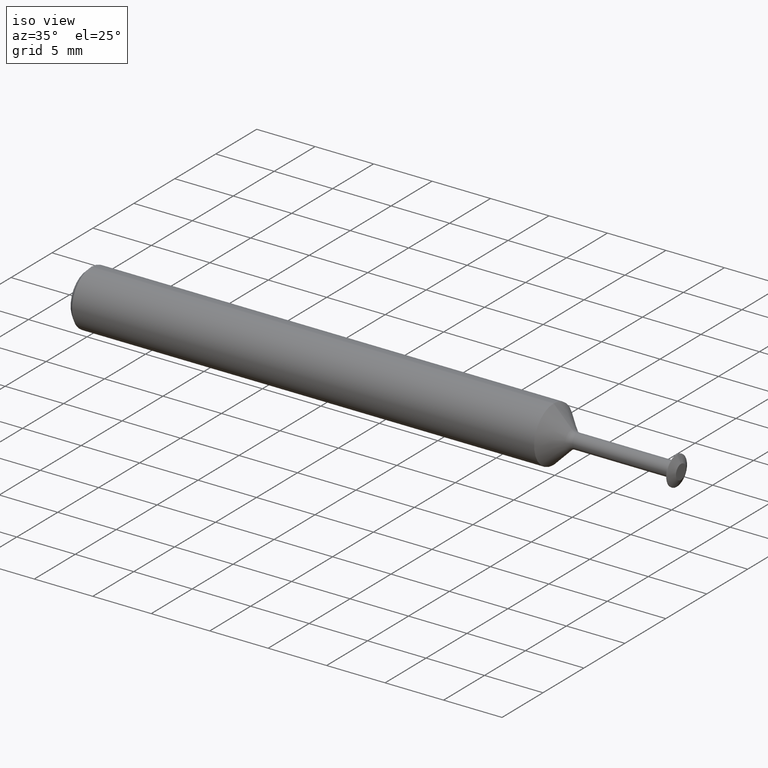
[diagram: clean part render]
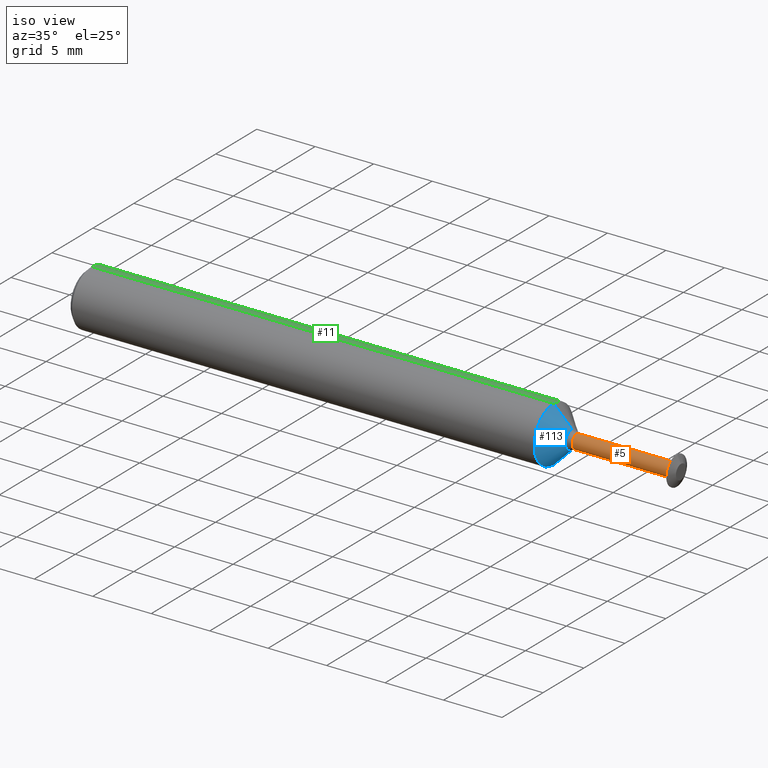
[diagram: same view with three faces highlighted in distinct colors, each labeled with its STEP entity id]
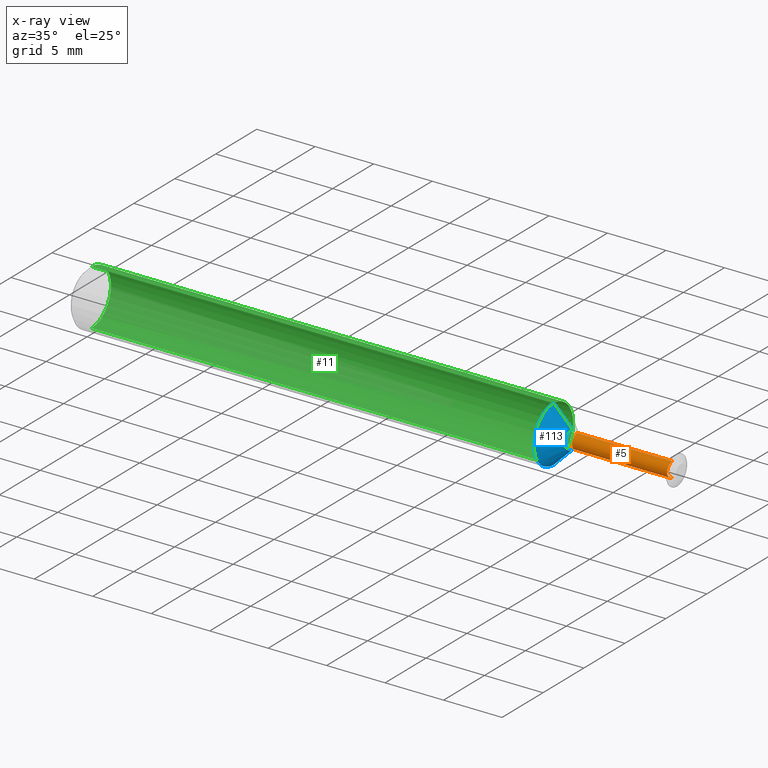
[diagram: x-ray of the same camera — body ghosted, the three highlighted faces saturated]
A machine part, iso view with three faces highlighted in distinct colors.
The next image is the same camera in x-ray (body ghosted, the three faces saturated) — at least one of them is partly hidden behind the body in this view.
Their STEP definitions:

[orange] entity #5 — the highlighted cylindrical surface (edge-blend (fillet) strip) has radius 0.6223 mm, axis along (-1, -0, -0).
#5 = ADVANCED_FACE ( 'NONE', ( #342 ), #486, .T. ) ;
#12 = CARTESIAN_POINT ( 'NONE',  ( 1.970380621325877213, 4.500576986866479174E-18, 0.02449999999999963665 ) ) ;
#15 = CIRCLE ( 'NONE', #45, 0.02449999999999960543 ) ;
#16 = EDGE_CURVE ( 'NONE', #262, #410, #491, .T. ) ;
#23 = DIRECTION ( 'NONE',  ( -1.000000000000000000, -0.0000000000000000000, -0.0000000000000000000 ) ) ;
#25 = ORIENTED_EDGE ( 'NONE', *, *, #241, .T. ) ;
#45 = AXIS2_PLACEMENT_3D ( 'NONE', #93, #416, #412 ) ;
#61 = CARTESIAN_POINT ( 'NONE',  ( 1.650545649722265917, 3.000384657910967884E-18, -0.02449999999999960543 ) ) ;
#92 = CARTESIAN_POINT ( 'NONE',  ( 1.970380621325877213, 0.0000000000000000000, 0.0000000000000000000 ) ) ;
#93 = CARTESIAN_POINT ( 'NONE',  ( 1.650545649722265917, 0.0000000000000000000, 0.0000000000000000000 ) ) ;
#103 = AXIS2_PLACEMENT_3D ( 'NONE', #375, #322, #408 ) ;
#104 = ORIENTED_EDGE ( 'NONE', *, *, #344, .F. ) ;
#115 = DIRECTION ( 'NONE',  ( -1.000000000000000000, -0.0000000000000000000, -0.0000000000000000000 ) ) ;
#132 = EDGE_CURVE ( 'NONE', #262, #298, #361, .T. ) ;
#144 = DIRECTION ( 'NONE',  ( -1.000000000000000000, -0.0000000000000000000, -0.0000000000000000000 ) ) ;
#173 = VERTEX_POINT ( 'NONE', #275 ) ;
#182 = ORIENTED_EDGE ( 'NONE', *, *, #132, .F. ) ;
#198 = CARTESIAN_POINT ( 'NONE',  ( 0.0000000000000000000, 0.0000000000000000000, 0.02449999999999961930 ) ) ;
#228 = CARTESIAN_POINT ( 'NONE',  ( 1.970380621325877213, 0.0000000000000000000, -0.02449999999999963665 ) ) ;
#241 = EDGE_CURVE ( 'NONE', #410, #173, #483, .T. ) ;
#262 = VERTEX_POINT ( 'NONE', #228 ) ;
#275 = CARTESIAN_POINT ( 'NONE',  ( 1.650545649722265917, 0.0000000000000000000, 0.02449999999999960543 ) ) ;
#280 = VECTOR ( 'NONE', #115, 39.37007874015748143 ) ;
#285 = DIRECTION ( 'NONE',  ( 0.0000000000000000000, 0.0000000000000000000, 1.000000000000000000 ) ) ;
#294 = ORIENTED_EDGE ( 'NONE', *, *, #16, .T. ) ;
#295 = AXIS2_PLACEMENT_3D ( 'NONE', #92, #144, #285 ) ;
#298 = VERTEX_POINT ( 'NONE', #61 ) ;
#322 = DIRECTION ( 'NONE',  ( -1.000000000000000000, -0.0000000000000000000, -0.0000000000000000000 ) ) ;
#342 = FACE_OUTER_BOUND ( 'NONE', #445, .T. ) ;
#344 = EDGE_CURVE ( 'NONE', #298, #173, #15, .T. ) ;
#361 = LINE ( 'NONE', #420, #419 ) ;
#375 = CARTESIAN_POINT ( 'NONE',  ( 0.0000000000000000000, 0.0000000000000000000, 0.0000000000000000000 ) ) ;
#408 = DIRECTION ( 'NONE',  ( 0.0000000000000000000, 0.0000000000000000000, 1.000000000000000000 ) ) ;
#410 = VERTEX_POINT ( 'NONE', #12 ) ;
#412 = DIRECTION ( 'NONE',  ( 0.0000000000000000000, 0.0000000000000000000, 1.000000000000000000 ) ) ;
#416 = DIRECTION ( 'NONE',  ( -1.000000000000000000, -0.0000000000000000000, -0.0000000000000000000 ) ) ;
#419 = VECTOR ( 'NONE', #23, 39.37007874015748143 ) ;
#420 = CARTESIAN_POINT ( 'NONE',  ( 0.0000000000000000000, 3.000384657910969040E-18, -0.02449999999999961930 ) ) ;
#445 = EDGE_LOOP ( 'NONE', ( #182, #294, #25, #104 ) ) ;
#483 = LINE ( 'NONE', #198, #280 ) ;
#486 = CYLINDRICAL_SURFACE ( 'NONE', #103, 0.02449999999999961930 ) ;
#491 = CIRCLE ( 'NONE', #295, 0.02449999999999963665 ) ;

[blue] entity #113 — the highlighted conical surface has half-angle 45 deg.
#2 = DIRECTION ( 'NONE',  ( -1.000000000000000000, -0.0000000000000000000, -0.0000000000000000000 ) ) ;
#22 = AXIS2_PLACEMENT_3D ( 'NONE', #172, #335, #501 ) ;
#33 = CARTESIAN_POINT ( 'NONE',  ( 1.632867980192602264, 0.0000000000000000000, 0.0000000000000000000 ) ) ;
#41 = EDGE_LOOP ( 'NONE', ( #346, #260, #268, #177 ) ) ;
#65 = EDGE_CURVE ( 'NONE', #80, #338, #220, .T. ) ;
#80 = VERTEX_POINT ( 'NONE', #124 ) ;
#81 = VECTOR ( 'NONE', #282, 39.37007874015748143 ) ;
#90 = DIRECTION ( 'NONE',  ( -0.7071067811865449082, 8.659560562354964906E-17, -0.7071067811865501263 ) ) ;
#113 = ADVANCED_FACE ( 'NONE', ( #148 ), #297, .T. ) ;
#124 = CARTESIAN_POINT ( 'NONE',  ( 1.632867980192602264, 3.897111515190616455E-18, -0.03182233047033591194 ) ) ;
#148 = FACE_OUTER_BOUND ( 'NONE', #41, .T. ) ;
#160 = EDGE_CURVE ( 'NONE', #343, #227, #273, .T. ) ;
#172 = CARTESIAN_POINT ( 'NONE',  ( 1.632867980192602264, 0.0000000000000000000, 0.0000000000000000000 ) ) ;
#177 = ORIENTED_EDGE ( 'NONE', *, *, #254, .F. ) ;
#192 = VECTOR ( 'NONE', #90, 39.37007874015748143 ) ;
#220 = LINE ( 'NONE', #488, #192 ) ;
#227 = VERTEX_POINT ( 'NONE', #311 ) ;
#247 = EDGE_CURVE ( 'NONE', #80, #343, #389, .T. ) ;
#249 = DIRECTION ( 'NONE',  ( 0.0000000000000000000, 0.0000000000000000000, 1.000000000000000000 ) ) ;
#254 = EDGE_CURVE ( 'NONE', #338, #227, #291, .T. ) ;
#260 = ORIENTED_EDGE ( 'NONE', *, *, #247, .T. ) ;
#268 = ORIENTED_EDGE ( 'NONE', *, *, #160, .T. ) ;
#273 = LINE ( 'NONE', #406, #81 ) ;
#276 = DIRECTION ( 'NONE',  ( -1.000000000000000000, -0.0000000000000000000, -0.0000000000000000000 ) ) ;
#282 = DIRECTION ( 'NONE',  ( -0.7071067811865449082, 0.0000000000000000000, 0.7071067811865501263 ) ) ;
#291 = CIRCLE ( 'NONE', #368, 0.09360000000000001652 ) ;
#297 = CONICAL_SURFACE ( 'NONE', #22, 0.03182233047033589113, 0.7853981633974520538 ) ;
#311 = CARTESIAN_POINT ( 'NONE',  ( 1.571090310662938583, 0.0000000000000000000, 0.09360000000000003040 ) ) ;
#320 = DIRECTION ( 'NONE',  ( 0.0000000000000000000, 0.0000000000000000000, 1.000000000000000000 ) ) ;
#335 = DIRECTION ( 'NONE',  ( -1.000000000000000000, -0.0000000000000000000, -0.0000000000000000000 ) ) ;
#338 = VERTEX_POINT ( 'NONE', #454 ) ;
#343 = VERTEX_POINT ( 'NONE', #490 ) ;
#346 = ORIENTED_EDGE ( 'NONE', *, *, #65, .F. ) ;
#368 = AXIS2_PLACEMENT_3D ( 'NONE', #496, #276, #249 ) ;
#389 = CIRCLE ( 'NONE', #414, 0.03182233047033589113 ) ;
#406 = CARTESIAN_POINT ( 'NONE',  ( 1.632867980192602264, 0.0000000000000000000, 0.03182233047033589113 ) ) ;
#414 = AXIS2_PLACEMENT_3D ( 'NONE', #33, #2, #320 ) ;
#454 = CARTESIAN_POINT ( 'NONE',  ( 1.571090310662938583, 1.146269404001922930E-17, -0.09360000000000003040 ) ) ;
#488 = CARTESIAN_POINT ( 'NONE',  ( 1.632867980192602264, 3.897111515190613373E-18, -0.03182233047033589113 ) ) ;
#490 = CARTESIAN_POINT ( 'NONE',  ( 1.632867980192602264, 0.0000000000000000000, 0.03182233047033591194 ) ) ;
#496 = CARTESIAN_POINT ( 'NONE',  ( 1.571090310662938583, 0.0000000000000000000, 0.0000000000000000000 ) ) ;
#501 = DIRECTION ( 'NONE',  ( 0.0000000000000000000, 0.0000000000000000000, 1.000000000000000000 ) ) ;

[green] entity #11 — the highlighted cylindrical surface (edge-blend (fillet) strip) has radius 2.3774 mm, axis along (-1, -0, -0).
#11 = ADVANCED_FACE ( 'NONE', ( #428 ), #340, .T. ) ;
#17 = CIRCLE ( 'NONE', #88, 0.09360000000000001652 ) ;
#26 = AXIS2_PLACEMENT_3D ( 'NONE', #330, #378, #271 ) ;
#55 = LINE ( 'NONE', #446, #186 ) ;
#82 = AXIS2_PLACEMENT_3D ( 'NONE', #475, #359, #356 ) ;
#88 = AXIS2_PLACEMENT_3D ( 'NONE', #165, #318, #261 ) ;
#110 = VERTEX_POINT ( 'NONE', #126 ) ;
#126 = CARTESIAN_POINT ( 'NONE',  ( 0.01499999999999997863, 1.146269404001922775E-17, -0.09360000000000001652 ) ) ;
#139 = EDGE_CURVE ( 'NONE', #110, #223, #17, .T. ) ;
#165 = CARTESIAN_POINT ( 'NONE',  ( 0.01499999999999997863, 0.0000000000000000000, 0.0000000000000000000 ) ) ;
#184 = EDGE_CURVE ( 'NONE', #227, #223, #193, .T. ) ;
#185 = DIRECTION ( 'NONE',  ( -1.000000000000000000, -0.0000000000000000000, -0.0000000000000000000 ) ) ;
#186 = VECTOR ( 'NONE', #185, 39.37007874015748143 ) ;
#188 = ORIENTED_EDGE ( 'NONE', *, *, #235, .T. ) ;
#193 = LINE ( 'NONE', #305, #239 ) ;
#205 = ORIENTED_EDGE ( 'NONE', *, *, #139, .T. ) ;
#223 = VERTEX_POINT ( 'NONE', #477 ) ;
#227 = VERTEX_POINT ( 'NONE', #311 ) ;
#235 = EDGE_CURVE ( 'NONE', #338, #110, #55, .T. ) ;
#239 = VECTOR ( 'NONE', #362, 39.37007874015748143 ) ;
#261 = DIRECTION ( 'NONE',  ( 0.0000000000000000000, 0.0000000000000000000, -1.000000000000000000 ) ) ;
#271 = DIRECTION ( 'NONE',  ( 0.0000000000000000000, 0.0000000000000000000, 1.000000000000000000 ) ) ;
#305 = CARTESIAN_POINT ( 'NONE',  ( 0.0000000000000000000, 0.0000000000000000000, 0.09360000000000001652 ) ) ;
#311 = CARTESIAN_POINT ( 'NONE',  ( 1.571090310662938583, 0.0000000000000000000, 0.09360000000000003040 ) ) ;
#318 = DIRECTION ( 'NONE',  ( 1.000000000000000000, 0.0000000000000000000, 0.0000000000000000000 ) ) ;
#330 = CARTESIAN_POINT ( 'NONE',  ( 0.0000000000000000000, 0.0000000000000000000, 0.0000000000000000000 ) ) ;
#338 = VERTEX_POINT ( 'NONE', #454 ) ;
#340 = CYLINDRICAL_SURFACE ( 'NONE', #26, 0.09360000000000001652 ) ;
#355 = EDGE_CURVE ( 'NONE', #227, #338, #374, .T. ) ;
#356 = DIRECTION ( 'NONE',  ( 0.0000000000000000000, 0.0000000000000000000, 1.000000000000000000 ) ) ;
#359 = DIRECTION ( 'NONE',  ( -1.000000000000000000, -0.0000000000000000000, -0.0000000000000000000 ) ) ;
#362 = DIRECTION ( 'NONE',  ( -1.000000000000000000, -0.0000000000000000000, -0.0000000000000000000 ) ) ;
#365 = ORIENTED_EDGE ( 'NONE', *, *, #355, .T. ) ;
#374 = CIRCLE ( 'NONE', #82, 0.09360000000000001652 ) ;
#378 = DIRECTION ( 'NONE',  ( -1.000000000000000000, -0.0000000000000000000, -0.0000000000000000000 ) ) ;
#428 = FACE_OUTER_BOUND ( 'NONE', #455, .T. ) ;
#446 = CARTESIAN_POINT ( 'NONE',  ( 0.0000000000000000000, 1.146269404001922775E-17, -0.09360000000000001652 ) ) ;
#454 = CARTESIAN_POINT ( 'NONE',  ( 1.571090310662938583, 1.146269404001922930E-17, -0.09360000000000003040 ) ) ;
#455 = EDGE_LOOP ( 'NONE', ( #365, #188, #205, #464 ) ) ;
#464 = ORIENTED_EDGE ( 'NONE', *, *, #184, .F. ) ;
#475 = CARTESIAN_POINT ( 'NONE',  ( 1.571090310662938583, 0.0000000000000000000, 0.0000000000000000000 ) ) ;
#477 = CARTESIAN_POINT ( 'NONE',  ( 0.01499999999999997863, 0.0000000000000000000, 0.09360000000000001652 ) ) ;